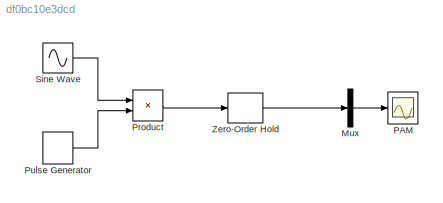
MODEL slx_df0bc10e3dcd
KIND model
CONFIG AbsTol = auto
CONFIG EnableMultiTasking = off
CONFIG FixedStep = auto
CONFIG MaxStep = auto
CONFIG MinStep = auto
CONFIG RelTol = 1e-3
CONFIG SampleTimeConstraint = Unconstrained
CONFIG SolverName = VariableStepAuto
CONFIG StartTime = 0.0
CONFIG StopTime = 10
BLOCK [Mux] Mux
  DisplayOption = bar
  Inputs = 3
BLOCK [Scope] PAM
  ActiveDisplayYMaximum = 4.0177080740945413E-12
  ActiveDisplayYMinimum = -3.6159372666850877E-11
  DataLogging = on
  DataLoggingSaveFormat = Array
  DataLoggingVariableName = pam_signal
  Floating = off
  GraphicalSettings = {"Style":{"BackgroundColor":[0.12941176470588237,0.12941176470588237,0.12941176470588237],"AxesColor":[0.07058823529411765,0.07058823529411765,0.07058823529411765],"LabelsColor":[0.8509803921568627,0.8509803921568627,0.8509803921568627],"PreserveColors":false,"Visible":[true,true,true],"LineStyle":["-","-","-"],"LineWidth":[1.5,1.5,1.5],"BarWidth":[0.9,0.9,0.9],"LineColor":["auto","auto","auto"],"...<+2277ch>
  MultipleDisplayCache = [{"MaxYLimMag":3.6159372666850877E-11,"MaxYLimReal":4.0177080740945413E-12,"MinYLimMag":0,"MinYLimReal":-3.6159372666850877E-11,"PlotAsMagnitudePhase":false,"ShowGrid":true,"ShowLegend":false,"Title":"%<SignalLabel>","YLabel":""}]
  NumInputPorts = 1
  ScopeFrameLocation = window
  Visible = on
  WasSavedAsWebScope = on
  WindowPosition = [285.000000,96.000000,1212.000000,839.000000,]
BLOCK [Product] Product
BLOCK [DiscretePulseGenerator] Pulse Generator
  Period = 0.0001
  PulseType = Time based
BLOCK [Sin] Sine Wave
  Amplitude = 5
  Frequency = 2*pi*1000
  SampleTime = 1
  VectorParams1D = off
BLOCK [ZeroOrderHold] Zero-Order Hold
  SampleTime = -1
LINE Mux:1 -> PAM:1
LINE Product:1 -> Zero-Order Hold:1
LINE Pulse Generator:1 -> Product:2
LINE Sine Wave:1 -> Product:1
LINE Zero-Order Hold:1 -> Mux:2
